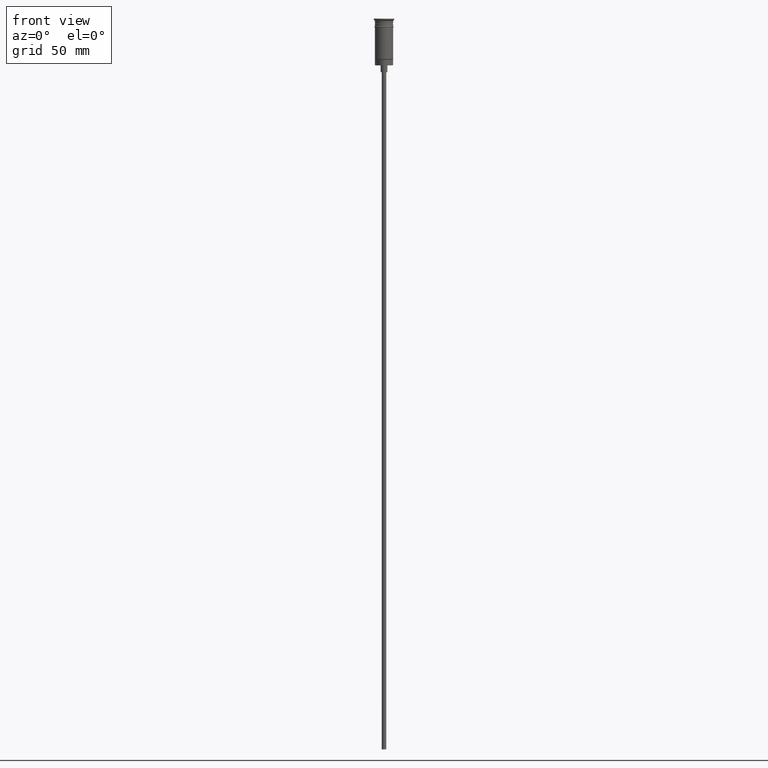
[diagram: clean part render]
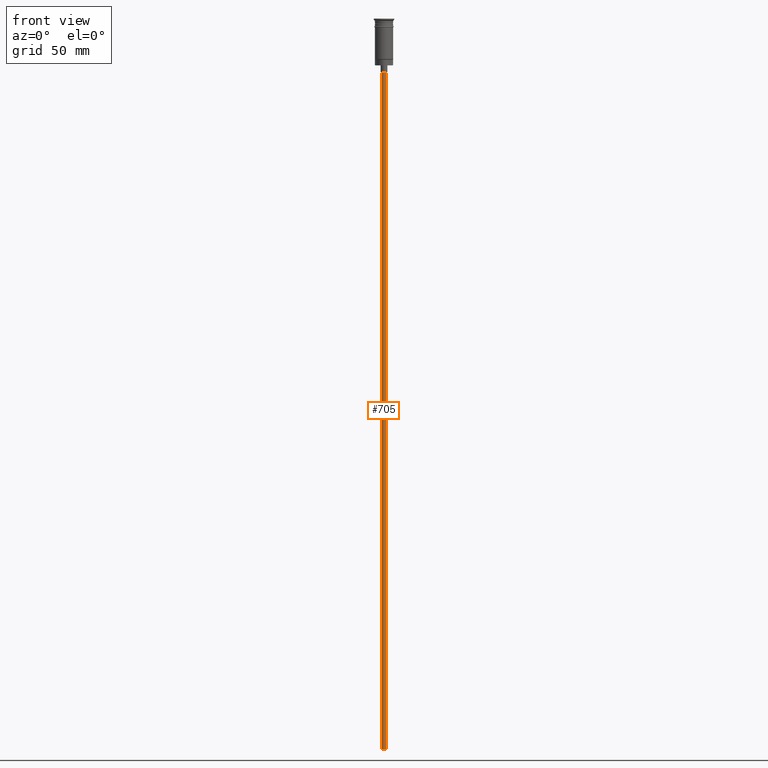
[diagram: same view with one face highlighted and labeled with its STEP entity id]
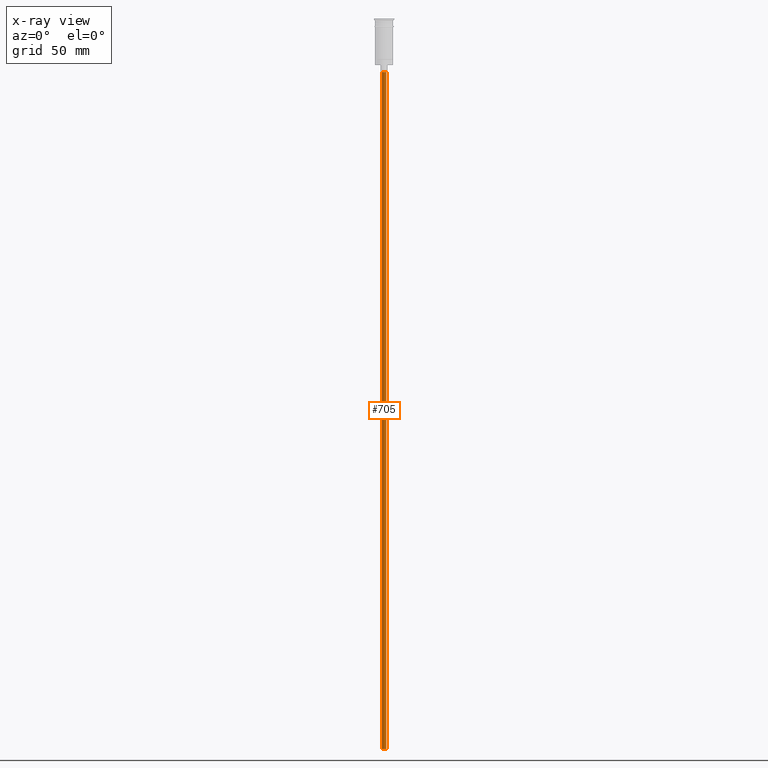
[diagram: x-ray of the same camera — body ghosted, the highlighted face saturated]
A machine part, front view. The second image highlights one B-rep face of the part: STEP entity #705.
The next image is the same camera in x-ray: the body ghosted, the highlighted face saturated — about 0% of this face is hidden behind the body in this view.
In plain terms, the highlighted cylindrical surface (edge-blend (fillet) strip) has radius 1 mm, axis along (-0, -0, 1).
Its self-contained STEP definition (entity closure, byte-faithful):
#31 = DIRECTION ( 'NONE',  ( -0.000000000000000000, -0.000000000000000000, 1.000000000000000000 ) ) ;
#62 = ORIENTED_EDGE ( 'NONE', *, *, #1555, .F. ) ;
#106 = DIRECTION ( 'NONE',  ( 0.000000000000000000, 0.000000000000000000, -1.000000000000000000 ) ) ;
#170 = CARTESIAN_POINT ( 'NONE',  ( 0.9999999999999997780, 0.000000000000000000, -23.49999999999999645 ) ) ;
#215 = VERTEX_POINT ( 'NONE', #1177 ) ;
#245 = AXIS2_PLACEMENT_3D ( 'NONE', #421, #553, #1052 ) ;
#255 = ORIENTED_EDGE ( 'NONE', *, *, #1506, .T. ) ;
#290 = CARTESIAN_POINT ( 'NONE',  ( -0.9999999999999997780, 1.224646799147352961E-16, -320.5000000000000000 ) ) ;
#391 = EDGE_LOOP ( 'NONE', ( #62, #1569, #820, #255 ) ) ;
#412 = CARTESIAN_POINT ( 'NONE',  ( -0.9999999999999997780, 1.224646799147352961E-16, -23.49999999999999645 ) ) ;
#421 = CARTESIAN_POINT ( 'NONE',  ( 0.000000000000000000, 0.000000000000000000, -320.5000000000000000 ) ) ;
#444 = VERTEX_POINT ( 'NONE', #170 ) ;
#459 = LINE ( 'NONE', #1329, #1391 ) ;
#553 = DIRECTION ( 'NONE',  ( -0.000000000000000000, -0.000000000000000000, 1.000000000000000000 ) ) ;
#705 = ADVANCED_FACE ( 'NONE', ( #1045 ), #1543, .T. ) ;
#771 = CARTESIAN_POINT ( 'NONE',  ( -0.9999999999999997780, 1.224646799147352961E-16, -320.5000000000000000 ) ) ;
#811 = CARTESIAN_POINT ( 'NONE',  ( 0.000000000000000000, 0.000000000000000000, -320.5000000000000000 ) ) ;
#820 = ORIENTED_EDGE ( 'NONE', *, *, #1522, .T. ) ;
#888 = VERTEX_POINT ( 'NONE', #412 ) ;
#977 = CIRCLE ( 'NONE', #1186, 0.9999999999999997780 ) ;
#982 = CARTESIAN_POINT ( 'NONE',  ( 0.000000000000000000, 0.000000000000000000, -23.49999999999999645 ) ) ;
#1045 = FACE_OUTER_BOUND ( 'NONE', #391, .T. ) ;
#1052 = DIRECTION ( 'NONE',  ( 1.000000000000000000, 0.000000000000000000, 0.000000000000000000 ) ) ;
#1074 = DIRECTION ( 'NONE',  ( -1.000000000000000000, 0.000000000000000000, 0.000000000000000000 ) ) ;
#1143 = LINE ( 'NONE', #771, #1603 ) ;
#1177 = CARTESIAN_POINT ( 'NONE',  ( 0.9999999999999997780, 0.000000000000000000, -320.5000000000000000 ) ) ;
#1186 = AXIS2_PLACEMENT_3D ( 'NONE', #982, #106, #1074 ) ;
#1253 = VERTEX_POINT ( 'NONE', #290 ) ;
#1256 = EDGE_CURVE ( 'NONE', #215, #1253, #1501, .T. ) ;
#1299 = DIRECTION ( 'NONE',  ( 0.000000000000000000, 0.000000000000000000, -1.000000000000000000 ) ) ;
#1329 = CARTESIAN_POINT ( 'NONE',  ( 0.9999999999999997780, 0.000000000000000000, -320.5000000000000000 ) ) ;
#1391 = VECTOR ( 'NONE', #1493, 1000.000000000000000 ) ;
#1493 = DIRECTION ( 'NONE',  ( -0.000000000000000000, -0.000000000000000000, 1.000000000000000000 ) ) ;
#1501 = CIRCLE ( 'NONE', #1556, 0.9999999999999997780 ) ;
#1506 = EDGE_CURVE ( 'NONE', #444, #888, #977, .T. ) ;
#1522 = EDGE_CURVE ( 'NONE', #215, #444, #459, .T. ) ;
#1533 = DIRECTION ( 'NONE',  ( -1.000000000000000000, 0.000000000000000000, 0.000000000000000000 ) ) ;
#1543 = CYLINDRICAL_SURFACE ( 'NONE', #245, 0.9999999999999997780 ) ;
#1555 = EDGE_CURVE ( 'NONE', #1253, #888, #1143, .T. ) ;
#1556 = AXIS2_PLACEMENT_3D ( 'NONE', #811, #1299, #1533 ) ;
#1569 = ORIENTED_EDGE ( 'NONE', *, *, #1256, .F. ) ;
#1603 = VECTOR ( 'NONE', #31, 1000.000000000000000 ) ;